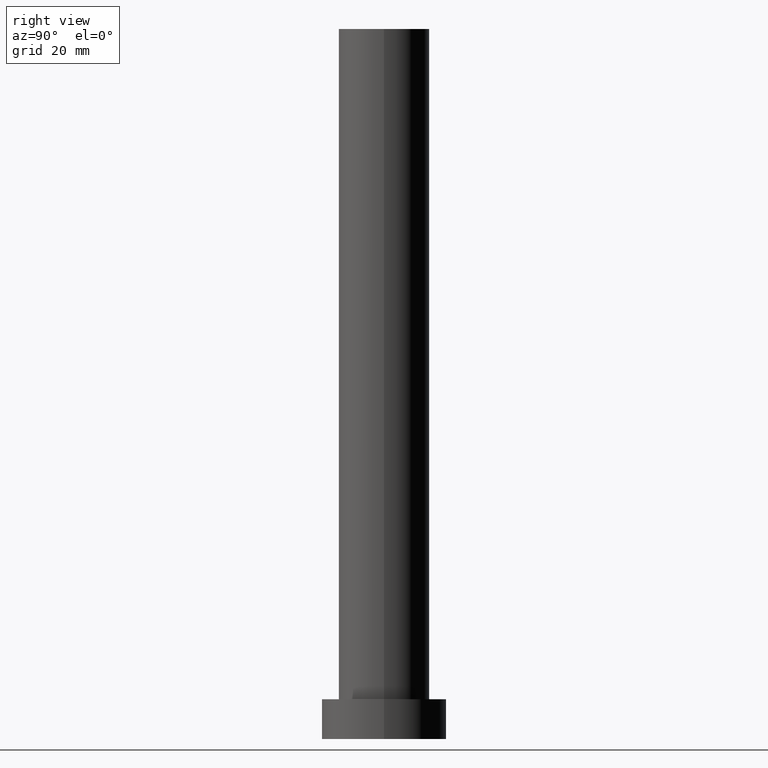
[diagram: clean part render]
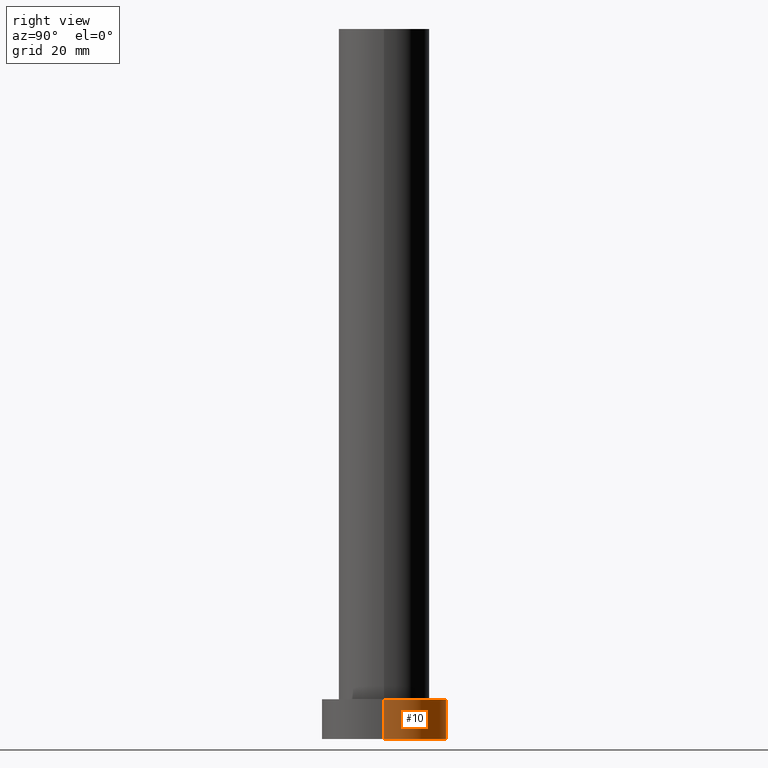
[diagram: same view with one face highlighted and labeled with its STEP entity id]
A machine part, right view. The second image highlights one B-rep face of the part: STEP entity #10.
In plain terms, the highlighted cylindrical surface (partial cylindrical patch) has radius 11 mm, axis along (-0, -0, -1).
Its self-contained STEP definition (entity closure, byte-faithful):
#9 = CARTESIAN_POINT ( 'NONE',  ( -11.00000000000000000, 0.000000000000000000, 7.000000000000000000 ) ) ;
#10 = ADVANCED_FACE ( 'NONE', ( #178 ), #59, .T. ) ;
#11 = DIRECTION ( 'NONE',  ( -0.000000000000000000, -0.000000000000000000, -1.000000000000000000 ) ) ;
#12 = CARTESIAN_POINT ( 'NONE',  ( 11.00000000000000000, 1.347111479062088405E-15, 0.000000000000000000 ) ) ;
#17 = CARTESIAN_POINT ( 'NONE',  ( 11.00000000000000000, 1.347111479062088405E-15, 7.000000000000000000 ) ) ;
#30 = CARTESIAN_POINT ( 'NONE',  ( 0.000000000000000000, 0.000000000000000000, 0.000000000000000000 ) ) ;
#34 = CARTESIAN_POINT ( 'NONE',  ( 0.000000000000000000, 0.000000000000000000, 7.000000000000000000 ) ) ;
#39 = EDGE_CURVE ( 'NONE', #107, #43, #98, .T. ) ;
#43 = VERTEX_POINT ( 'NONE', #131 ) ;
#45 = ORIENTED_EDGE ( 'NONE', *, *, #102, .T. ) ;
#53 = EDGE_CURVE ( 'NONE', #223, #43, #230, .T. ) ;
#54 = AXIS2_PLACEMENT_3D ( 'NONE', #34, #11, #177 ) ;
#55 = CIRCLE ( 'NONE', #99, 11.00000000000000000 ) ;
#56 = DIRECTION ( 'NONE',  ( -0.000000000000000000, -0.000000000000000000, -1.000000000000000000 ) ) ;
#59 = CYLINDRICAL_SURFACE ( 'NONE', #54, 11.00000000000000000 ) ;
#74 = CARTESIAN_POINT ( 'NONE',  ( 11.00000000000000000, 1.347111479062088405E-15, 7.000000000000000000 ) ) ;
#92 = DIRECTION ( 'NONE',  ( -0.000000000000000000, -0.000000000000000000, -1.000000000000000000 ) ) ;
#98 = CIRCLE ( 'NONE', #166, 11.00000000000000000 ) ;
#99 = AXIS2_PLACEMENT_3D ( 'NONE', #197, #253, #141 ) ;
#102 = EDGE_CURVE ( 'NONE', #168, #107, #191, .T. ) ;
#107 = VERTEX_POINT ( 'NONE', #12 ) ;
#131 = CARTESIAN_POINT ( 'NONE',  ( -11.00000000000000000, 0.000000000000000000, 0.000000000000000000 ) ) ;
#139 = VECTOR ( 'NONE', #56, 1000.000000000000000 ) ;
#140 = EDGE_CURVE ( 'NONE', #168, #223, #55, .T. ) ;
#141 = DIRECTION ( 'NONE',  ( 1.000000000000000000, 0.000000000000000000, 0.000000000000000000 ) ) ;
#145 = ORIENTED_EDGE ( 'NONE', *, *, #140, .F. ) ;
#166 = AXIS2_PLACEMENT_3D ( 'NONE', #30, #213, #252 ) ;
#168 = VERTEX_POINT ( 'NONE', #74 ) ;
#169 = EDGE_LOOP ( 'NONE', ( #145, #45, #204, #207 ) ) ;
#177 = DIRECTION ( 'NONE',  ( -1.000000000000000000, 0.000000000000000000, 0.000000000000000000 ) ) ;
#178 = FACE_OUTER_BOUND ( 'NONE', #169, .T. ) ;
#191 = LINE ( 'NONE', #17, #224 ) ;
#197 = CARTESIAN_POINT ( 'NONE',  ( 0.000000000000000000, 0.000000000000000000, 7.000000000000000000 ) ) ;
#204 = ORIENTED_EDGE ( 'NONE', *, *, #39, .T. ) ;
#207 = ORIENTED_EDGE ( 'NONE', *, *, #53, .F. ) ;
#213 = DIRECTION ( 'NONE',  ( 0.000000000000000000, 0.000000000000000000, 1.000000000000000000 ) ) ;
#223 = VERTEX_POINT ( 'NONE', #243 ) ;
#224 = VECTOR ( 'NONE', #92, 1000.000000000000000 ) ;
#230 = LINE ( 'NONE', #9, #139 ) ;
#243 = CARTESIAN_POINT ( 'NONE',  ( -11.00000000000000000, 0.000000000000000000, 7.000000000000000000 ) ) ;
#252 = DIRECTION ( 'NONE',  ( 1.000000000000000000, 0.000000000000000000, 0.000000000000000000 ) ) ;
#253 = DIRECTION ( 'NONE',  ( 0.000000000000000000, 0.000000000000000000, 1.000000000000000000 ) ) ;